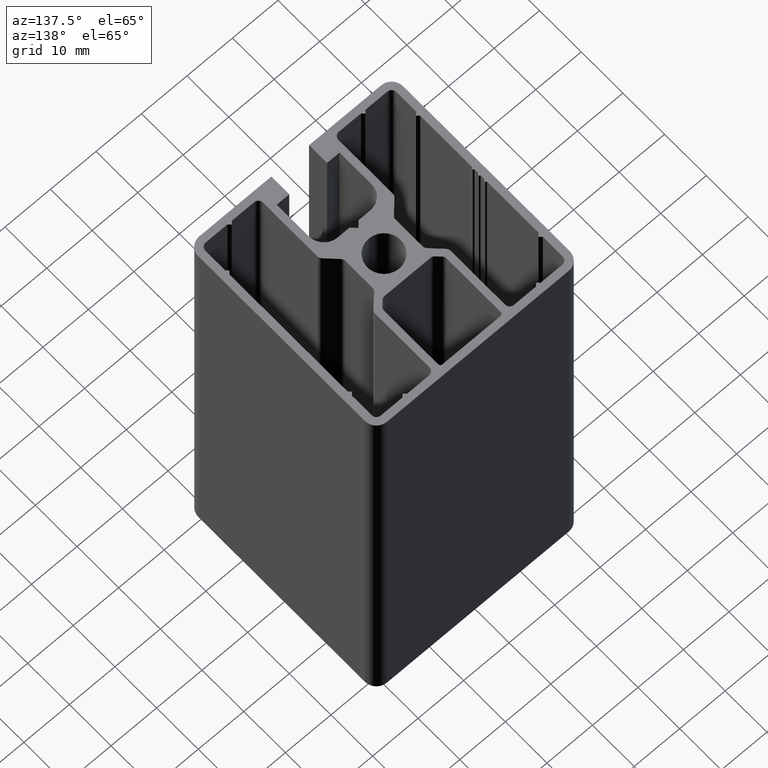
[diagram: clean part render]
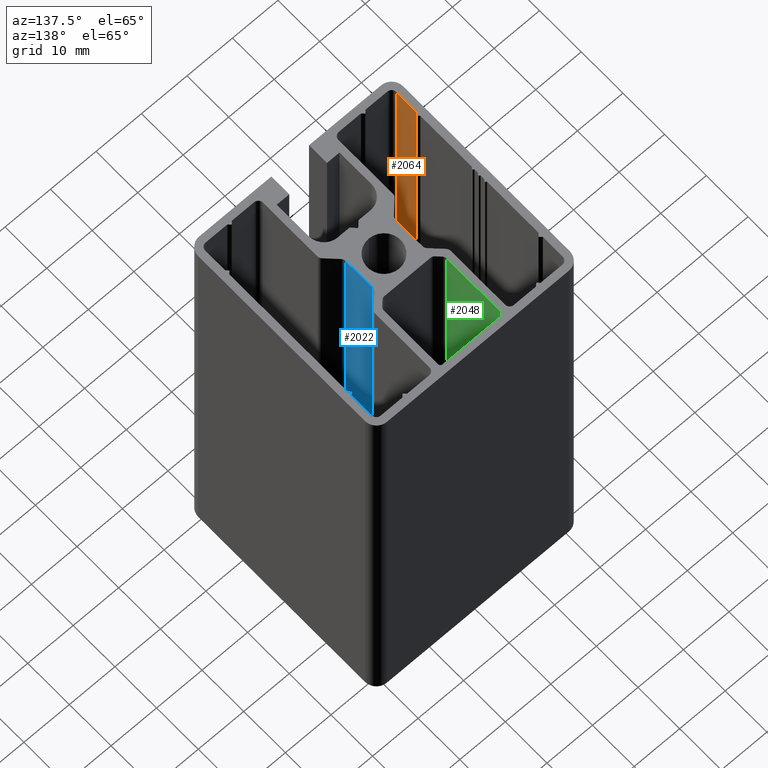
[diagram: same view with three faces highlighted in distinct colors, each labeled with its STEP entity id]
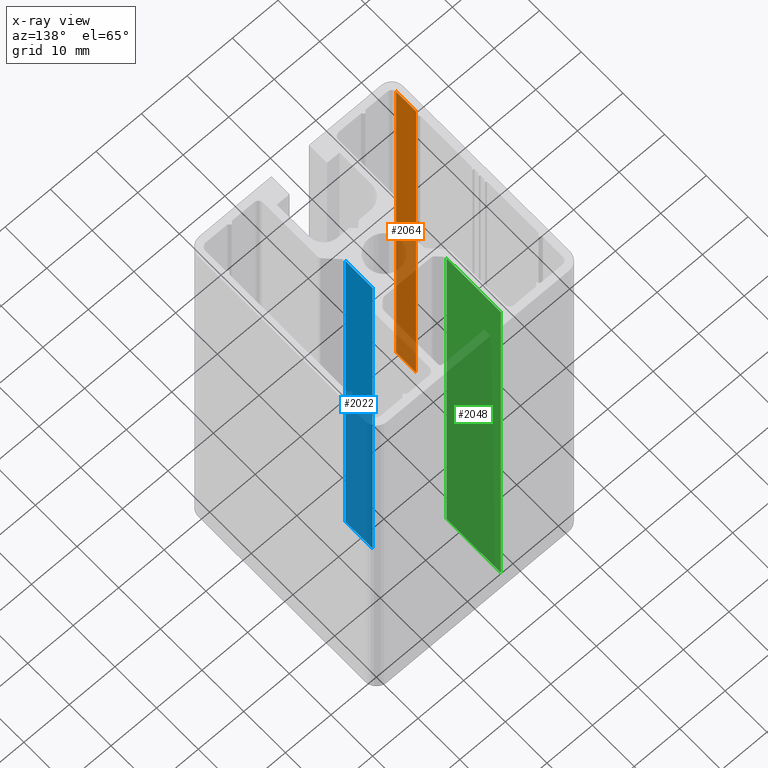
[diagram: x-ray of the same camera — body ghosted, the three highlighted faces saturated]
A machine part, auxiliary view with three faces highlighted in distinct colors.
The next image is the same camera in x-ray (body ghosted, the three faces saturated) — at least one of them is partly hidden behind the body in this view.
Their STEP definitions:

[orange] entity #2064 — the highlighted planar face has unit normal (-1, 0, 0).
#204=FACE_OUTER_BOUND('',#309,.T.);
#309=EDGE_LOOP('',(#1584,#1585,#1586,#1587));
#502=LINE('',#3275,#731);
#504=LINE('',#3279,#733);
#505=LINE('',#3281,#734);
#506=LINE('',#3282,#735);
#731=VECTOR('',#2665,100.);
#733=VECTOR('',#2669,4.79898455519844);
#734=VECTOR('',#2670,100.);
#735=VECTOR('',#2671,4.79898455519844);
#947=VERTEX_POINT('',#3272);
#948=VERTEX_POINT('',#3274);
#949=VERTEX_POINT('',#3278);
#950=VERTEX_POINT('',#3280);
#1214=EDGE_CURVE('',#948,#947,#502,.T.);
#1216=EDGE_CURVE('',#949,#947,#504,.T.);
#1217=EDGE_CURVE('',#950,#949,#505,.T.);
#1218=EDGE_CURVE('',#948,#950,#506,.T.);
#1584=ORIENTED_EDGE('',*,*,#1216,.F.);
#1585=ORIENTED_EDGE('',*,*,#1217,.F.);
#1586=ORIENTED_EDGE('',*,*,#1218,.F.);
#1587=ORIENTED_EDGE('',*,*,#1214,.T.);
#1973=PLANE('',#2220);
#2064=ADVANCED_FACE('',(#204),#1973,.F.);
#2220=AXIS2_PLACEMENT_3D('',#3277,#2667,#2668);
#2665=DIRECTION('',(0.,0.,1.));
#2667=DIRECTION('center_axis',(-1.,1.85076323852307E-15,0.));
#2668=DIRECTION('ref_axis',(0.,0.,1.));
#2669=DIRECTION('',(1.85076323852307E-15,1.,0.));
#2670=DIRECTION('',(0.,0.,1.));
#2671=DIRECTION('',(-1.85076323852307E-15,-1.,0.));
#3272=CARTESIAN_POINT('',(-20.9902647178636,-15.1980724188795,100.));
#3274=CARTESIAN_POINT('',(-20.9902647178636,-15.1980724188795,0.));
#3275=CARTESIAN_POINT('',(-20.9902647178636,-15.1980724188795,0.));
#3277=CARTESIAN_POINT('Origin',(-20.9902647178636,-19.997056974078,0.));
#3278=CARTESIAN_POINT('',(-20.9902647178636,-19.997056974078,100.));
#3279=CARTESIAN_POINT('',(-20.9902647178636,-9.99852848703896,100.));
#3280=CARTESIAN_POINT('',(-20.9902647178636,-19.997056974078,0.));
#3281=CARTESIAN_POINT('',(-20.9902647178636,-19.997056974078,0.));
#3282=CARTESIAN_POINT('',(-20.9902647178636,-9.99852848703896,0.));

[blue] entity #2022 — the highlighted planar face has unit normal (-1, -0, 0).
#162=FACE_OUTER_BOUND('',#266,.T.);
#266=EDGE_LOOP('',(#1418,#1419,#1420,#1421));
#415=LINE('',#3022,#644);
#416=LINE('',#3025,#645);
#417=LINE('',#3027,#646);
#418=LINE('',#3028,#647);
#644=VECTOR('',#2418,100.);
#645=VECTOR('',#2421,6.56750083067732);
#646=VECTOR('',#2422,6.56750083067732);
#647=VECTOR('',#2423,100.);
#861=VERTEX_POINT('',#3018);
#862=VERTEX_POINT('',#3020);
#863=VERTEX_POINT('',#3024);
#864=VERTEX_POINT('',#3026);
#1089=EDGE_CURVE('',#862,#861,#415,.T.);
#1090=EDGE_CURVE('',#861,#863,#416,.T.);
#1091=EDGE_CURVE('',#864,#862,#417,.T.);
#1092=EDGE_CURVE('',#864,#863,#418,.T.);
#1418=ORIENTED_EDGE('',*,*,#1090,.F.);
#1419=ORIENTED_EDGE('',*,*,#1089,.F.);
#1420=ORIENTED_EDGE('',*,*,#1091,.F.);
#1421=ORIENTED_EDGE('',*,*,#1092,.T.);
#1950=PLANE('',#2140);
#2022=ADVANCED_FACE('',(#162),#1950,.F.);
#2140=AXIS2_PLACEMENT_3D('',#3023,#2419,#2420);
#2418=DIRECTION('',(0.,0.,1.));
#2419=DIRECTION('center_axis',(-1.,-3.38096043913452E-16,0.));
#2420=DIRECTION('ref_axis',(0.,0.,1.));
#2421=DIRECTION('',(-3.38096043913452E-16,1.,0.));
#2422=DIRECTION('',(3.38096043913452E-16,-1.,0.));
#2423=DIRECTION('',(0.,0.,1.));
#3018=CARTESIAN_POINT('',(5.50030073499522,-3.28375041533866,100.));
#3020=CARTESIAN_POINT('',(5.50030073499522,-3.28375041533866,0.));
#3022=CARTESIAN_POINT('',(5.50030073499522,-3.28375041533866,0.));
#3023=CARTESIAN_POINT('Origin',(5.50030073499522,-3.28375041533866,0.));
#3024=CARTESIAN_POINT('',(5.50030073499522,3.28375041533866,100.));
#3025=CARTESIAN_POINT('',(5.50030073499522,-1.64187520766933,100.));
#3026=CARTESIAN_POINT('',(5.50030073499522,3.28375041533866,0.));
#3027=CARTESIAN_POINT('',(5.50030073499522,-1.64187520766933,0.));
#3028=CARTESIAN_POINT('',(5.50030073499522,3.28375041533866,0.));

[green] entity #2048 — the highlighted planar face has unit normal (-1, -0, 0).
#188=FACE_OUTER_BOUND('',#293,.T.);
#293=EDGE_LOOP('',(#1520,#1521,#1522,#1523));
#473=LINE('',#3180,#702);
#474=LINE('',#3183,#703);
#475=LINE('',#3185,#704);
#476=LINE('',#3186,#705);
#702=VECTOR('',#2568,100.);
#703=VECTOR('',#2571,13.0032659125677);
#704=VECTOR('',#2572,13.0032659125677);
#705=VECTOR('',#2573,100.);
#915=VERTEX_POINT('',#3176);
#916=VERTEX_POINT('',#3178);
#917=VERTEX_POINT('',#3182);
#918=VERTEX_POINT('',#3184);
#1167=EDGE_CURVE('',#916,#915,#473,.T.);
#1168=EDGE_CURVE('',#915,#917,#474,.T.);
#1169=EDGE_CURVE('',#918,#916,#475,.T.);
#1170=EDGE_CURVE('',#918,#917,#476,.T.);
#1520=ORIENTED_EDGE('',*,*,#1168,.F.);
#1521=ORIENTED_EDGE('',*,*,#1167,.F.);
#1522=ORIENTED_EDGE('',*,*,#1169,.F.);
#1523=ORIENTED_EDGE('',*,*,#1170,.T.);
#1966=PLANE('',#2186);
#2048=ADVANCED_FACE('',(#188),#1966,.F.);
#2186=AXIS2_PLACEMENT_3D('',#3181,#2569,#2570);
#2568=DIRECTION('',(0.,0.,1.));
#2569=DIRECTION('center_axis',(-1.,-1.70760643070772E-16,0.));
#2570=DIRECTION('ref_axis',(0.,0.,1.));
#2571=DIRECTION('',(-1.70760643070772E-16,1.,0.));
#2572=DIRECTION('',(1.70760643070772E-16,-1.,0.));
#2573=DIRECTION('',(0.,0.,1.));
#3176=CARTESIAN_POINT('',(-6.89569327916376,7.49371996051025,100.));
#3178=CARTESIAN_POINT('',(-6.89569327916376,7.49371996051025,0.));
#3180=CARTESIAN_POINT('',(-6.89569327916376,7.49371996051025,0.));
#3181=CARTESIAN_POINT('Origin',(-6.89569327916376,7.49371996051025,0.));
#3182=CARTESIAN_POINT('',(-6.89569327916377,20.496985873078,100.));
#3183=CARTESIAN_POINT('',(-6.89569327916376,3.74685998025512,100.));
#3184=CARTESIAN_POINT('',(-6.89569327916377,20.496985873078,0.));
#3185=CARTESIAN_POINT('',(-6.89569327916376,3.74685998025512,0.));
#3186=CARTESIAN_POINT('',(-6.89569327916377,20.496985873078,0.));